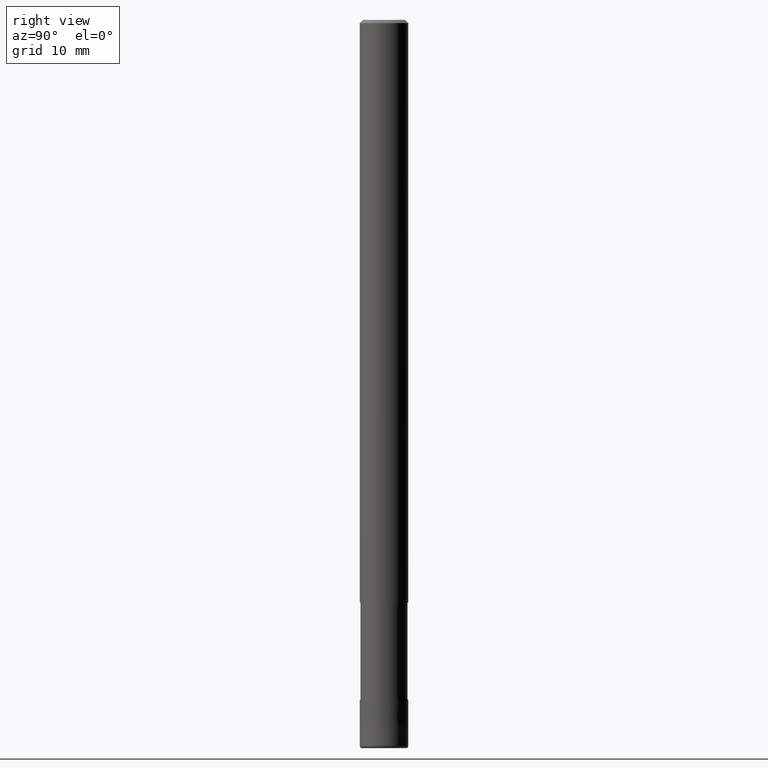
[diagram: clean part render]
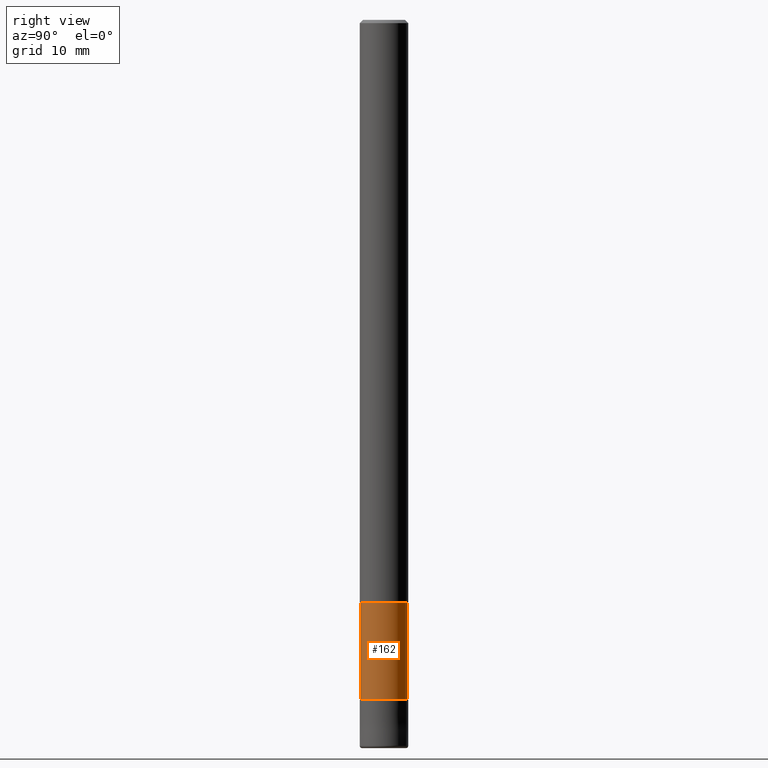
[diagram: same view with one face highlighted and labeled with its STEP entity id]
A machine part, right view. The second image highlights one B-rep face of the part: STEP entity #162.
In plain terms, the highlighted cylindrical surface (edge-blend (fillet) strip) has radius 2.9099 mm, axis along (-0, -0, 1).
Its self-contained STEP definition (entity closure, byte-faithful):
#94=EDGE_CURVE('',#104,#192,#231,.T.);
#104=VERTEX_POINT('',#242);
#142=EDGE_CURVE('',#104,#150,#288,.T.);
#150=VERTEX_POINT('',#296);
#162=ADVANCED_FACE('',(#310),#311,.T.);
#176=EDGE_CURVE('',#188,#150,#326,.T.);
#180=EDGE_CURVE('',#192,#188,#330,.T.);
#188=VERTEX_POINT('',#340);
#192=VERTEX_POINT('',#344);
#231=LINE('',#376,#377);
#242=CARTESIAN_POINT('',(0.0,2.90995,-72.0));
#288=CIRCLE('',#448,2.90995);
#296=CARTESIAN_POINT('',(3.56354325930543E-016,-2.90995,-72.0));
#310=FACE_OUTER_BOUND('',#475,.T.);
#311=CYLINDRICAL_SURFACE('',#476,2.90995);
#326=LINE('',#494,#495);
#330=CIRCLE('',#501,2.90995);
#340=CARTESIAN_POINT('',(3.56354325930543E-016,-2.90995,-84.0));
#344=CARTESIAN_POINT('',(0.0,2.90995,-84.0));
#376=CARTESIAN_POINT('',(-3.56354325930543E-016,2.90995,-78.0));
#377=VECTOR('',#541,1.0);
#448=AXIS2_PLACEMENT_3D('',#629,#630,#631);
#475=EDGE_LOOP('',(#659,#660,#661,#662));
#476=AXIS2_PLACEMENT_3D('',#663,#664,#665);
#494=CARTESIAN_POINT('',(3.56354325930543E-016,-2.90995,-78.0));
#495=VECTOR('',#680,1.0);
#501=AXIS2_PLACEMENT_3D('',#684,#685,#686);
#541=DIRECTION('',(0.0,0.0,-1.0));
#629=CARTESIAN_POINT('',(0.0,0.0,-72.0));
#630=DIRECTION('',(0.0,0.0,-1.0));
#631=DIRECTION('',(0.0,1.0,0.0));
#659=ORIENTED_EDGE('',*,*,#94,.F.);
#660=ORIENTED_EDGE('',*,*,#142,.T.);
#661=ORIENTED_EDGE('',*,*,#176,.F.);
#662=ORIENTED_EDGE('',*,*,#180,.F.);
#663=CARTESIAN_POINT('',(0.0,0.0,-78.0));
#664=DIRECTION('',(-0.0,-0.0,1.0));
#665=DIRECTION('',(0.0,1.0,0.0));
#680=DIRECTION('',(-0.0,-0.0,1.0));
#684=CARTESIAN_POINT('',(0.0,0.0,-84.0));
#685=DIRECTION('',(0.0,0.0,-1.0));
#686=DIRECTION('',(0.0,1.0,0.0));